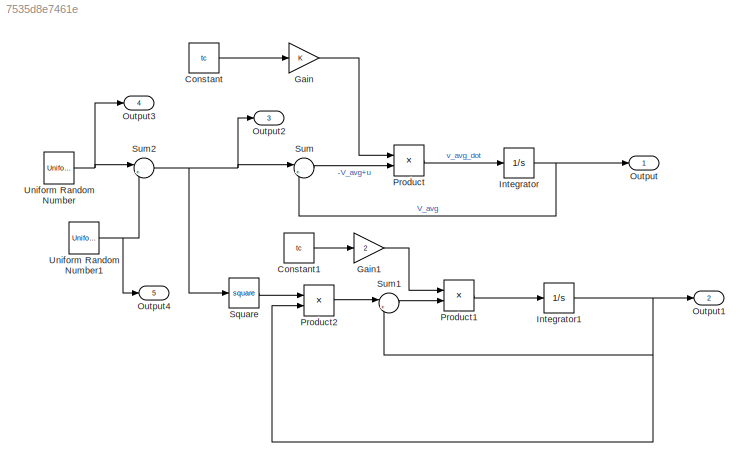
MODEL slx_7535d8e7461e
KIND model
CONFIG AbsTol = auto
CONFIG EnableMultiTasking = off
CONFIG FixedStep = 0.1
CONFIG MaxStep = auto
CONFIG MinStep = auto
CONFIG RelTol = 1e-3
CONFIG SampleTimeConstraint = Unconstrained
CONFIG SolverName = ode45
CONFIG StartTime = 1
CONFIG StopTime = 100
BLOCK [Constant] Constant
  Value = tc
BLOCK [Constant] Constant1
  Value = tc
BLOCK [Gain] Gain
BLOCK [Gain] Gain1
  Gain = 2
BLOCK [Integrator] Integrator
  InitialCondition = 0.0001
  Ports = [1, 1]
BLOCK [Integrator] Integrator1
  InitialCondition = 0.0001
  Ports = [1, 1]
BLOCK [Outport] Output
BLOCK [Outport] Output1
  Port = 2
BLOCK [Outport] Output2
  Port = 3
BLOCK [Outport] Output3
  Port = 4
BLOCK [Outport] Output4
  Port = 5
BLOCK [Product] Product
  Inputs = /*
  Ports = [2, 1]
BLOCK [Product] Product1
  Inputs = /*
  Ports = [2, 1]
BLOCK [Product] Product2
  Inputs = */
  Ports = [2, 1]
BLOCK [Math] Square
  Operator = square
  Ports = [1, 1]
BLOCK [Sum] Sum
  Inputs = |+-
  Ports = [2, 1]
BLOCK [Sum] Sum1
  Inputs = |+-
  Ports = [2, 1]
BLOCK [Sum] Sum2
  Inputs = |++
  Ports = [2, 1]
BLOCK [UniformRandomNumber] Uniform Random Number
  Maximum = nmax
  Minimum = nmin
  SampleTime = 1
  Seed = seed
BLOCK [UniformRandomNumber] Uniform Random Number1
  Maximum = nmax2
  Minimum = nmin2
  SampleTime = 1
  Seed = seed2
LINE Constant1:1 -> Gain1:1
LINE Constant:1 -> Gain:1
LINE Gain1:1 -> Product1:1
LINE Gain:1 -> Product:1
NET Integrator1:1 -> Output1:1, Product2:2, Sum1:2
NET Integrator:1 -> Output:1, Sum:2
LINE Product1:1 -> Integrator1:1
LINE Product2:1 -> Sum1:1
LINE Product:1 -> Integrator:1
LINE Square:1 -> Product2:1
LINE Sum1:1 -> Product1:2
NET Sum2:1 -> Output2:1, Square:1, Sum:1
LINE Sum:1 -> Product:2
NET Uniform Random Number1:1 -> Output4:1, Sum2:2
NET Uniform Random Number:1 -> Output3:1, Sum2:1
note: NET lines group one-source signal fan-out (src -> all destinations, sorted); 1:1 wires keep LINE
